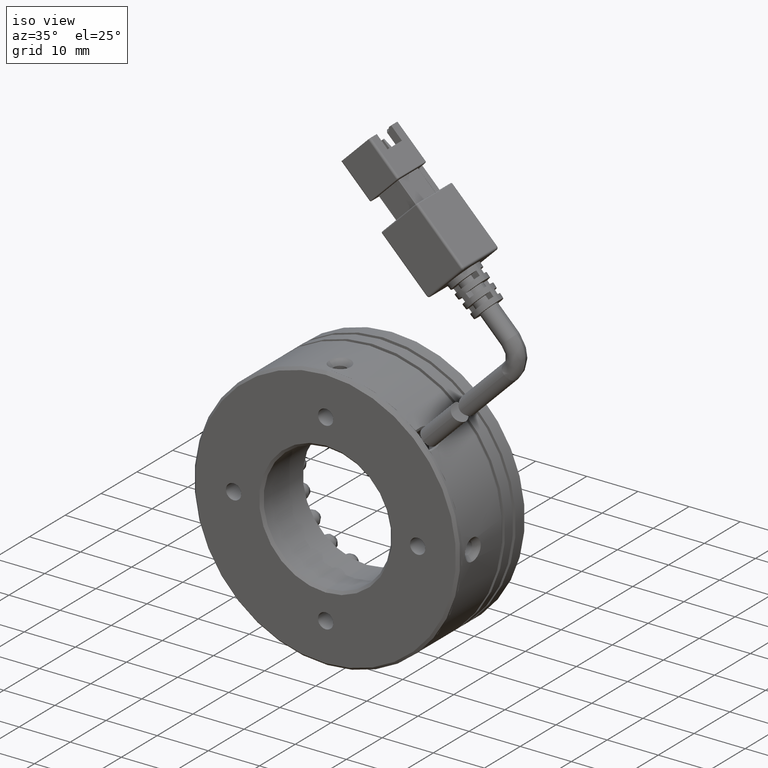
[diagram: clean part render]
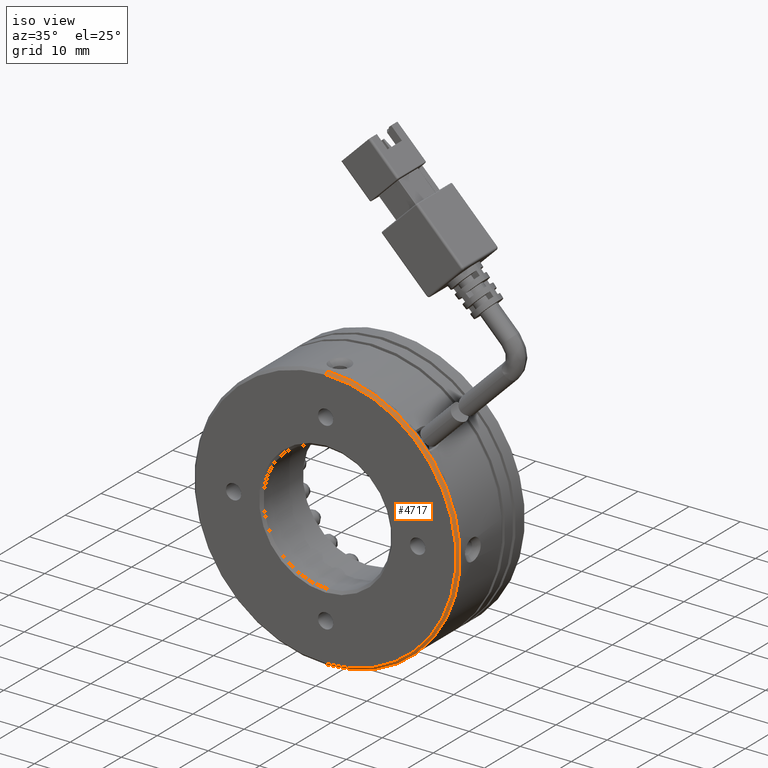
[diagram: same view with one face highlighted and labeled with its STEP entity id]
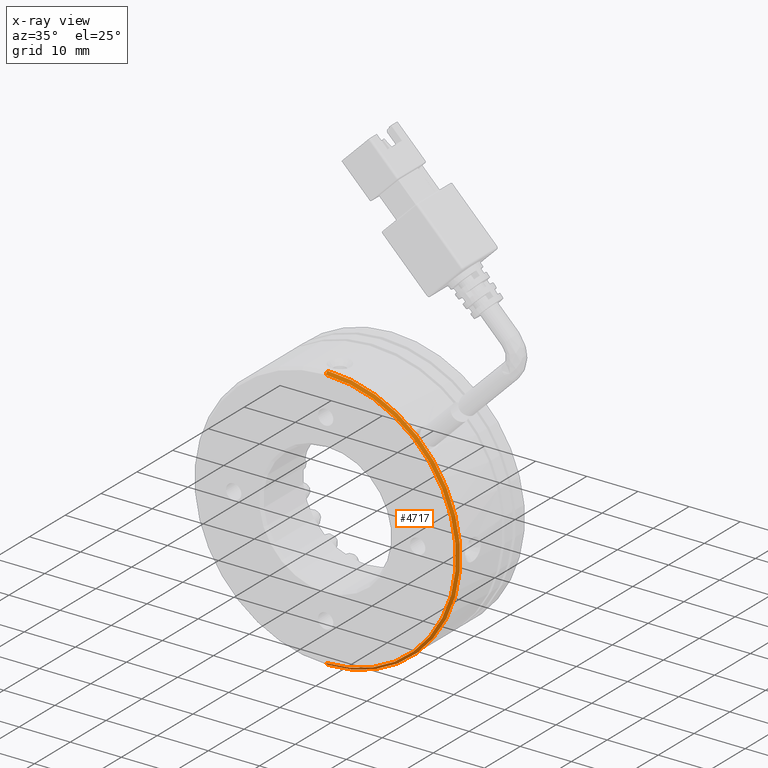
[diagram: x-ray of the same camera — body ghosted, the highlighted face saturated]
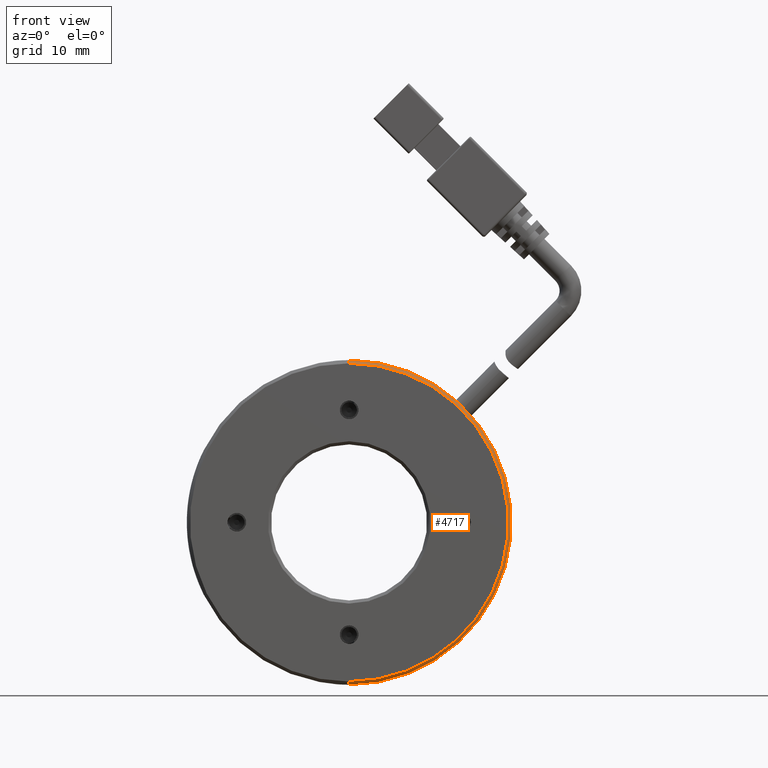
[diagram: same view with one face highlighted and labeled with its STEP entity id]
A machine part, iso view. The second image highlights one B-rep face of the part: STEP entity #4717.
The next image is the same camera in x-ray: the body ghosted, the highlighted face saturated — about 0% of this face is hidden behind the body in this view.
A second angle (front view) of the same face is appended — the face is thin or edge-on in the first view.
In plain terms, the highlighted conical surface has half-angle 45 deg.
Its self-contained STEP definition (entity closure, byte-faithful):
#4717 = ADVANCED_FACE ( 'NONE', ( #33785 ), #6837, .T. ) ;
#6503 = CARTESIAN_POINT ( 'NONE',  ( -0.8432364767453765000, -5.519923829761832000, 26.00000000000001100 ) ) ;
#6559 = CIRCLE ( 'NONE', #10870, 25.50000000000002500 ) ;
#6837 = CONICAL_SURFACE ( 'NONE', #28710, 26.00000000000001100, 0.7853981633974309600 ) ;
#8580 = EDGE_LOOP ( 'NONE', ( #40826, #18925, #45812, #11346 ) ) ;
#8923 = CIRCLE ( 'NONE', #9503, 26.00000000000000700 ) ;
#9503 = AXIS2_PLACEMENT_3D ( 'NONE', #15173, #40234, #18748 ) ;
#10870 = AXIS2_PLACEMENT_3D ( 'NONE', #19493, #44583, #23112 ) ;
#11346 = ORIENTED_EDGE ( 'NONE', *, *, #17796, .F. ) ;
#11781 = CARTESIAN_POINT ( 'NONE',  ( -0.8432364767453765000, -5.519923829761832000, -26.00000000000001100 ) ) ;
#11994 = DIRECTION ( 'NONE',  ( 8.659560562354782500E-017, 0.7071067811865597900, -0.7071067811865352500 ) ) ;
#14903 = VERTEX_POINT ( 'NONE', #11781 ) ;
#15142 = VECTOR ( 'NONE', #11994, 1000.000000000000000 ) ;
#15173 = CARTESIAN_POINT ( 'NONE',  ( -0.8432364767453765000, -5.519923829761832000, 0.0000000000000000000 ) ) ;
#15496 = DIRECTION ( 'NONE',  ( -0.0000000000000000000, 1.000000000000000000, 0.0000000000000000000 ) ) ;
#16348 = CARTESIAN_POINT ( 'NONE',  ( -0.8432364767453765000, -6.019923829761832000, 25.50000000000002500 ) ) ;
#17796 = EDGE_CURVE ( 'NONE', #19786, #24976, #23324, .T. ) ;
#18748 = DIRECTION ( 'NONE',  ( 0.0000000000000000000, 0.0000000000000000000, 1.000000000000000000 ) ) ;
#18925 = ORIENTED_EDGE ( 'NONE', *, *, #44516, .T. ) ;
#19493 = CARTESIAN_POINT ( 'NONE',  ( -0.8432364767453765000, -6.019923829761832000, 0.0000000000000000000 ) ) ;
#19786 = VERTEX_POINT ( 'NONE', #16348 ) ;
#22003 = VERTEX_POINT ( 'NONE', #40928 ) ;
#23112 = DIRECTION ( 'NONE',  ( 0.0000000000000000000, 0.0000000000000000000, 1.000000000000000000 ) ) ;
#23324 = LINE ( 'NONE', #6503, #31723 ) ;
#24677 = LINE ( 'NONE', #40567, #15142 ) ;
#24976 = VERTEX_POINT ( 'NONE', #44829 ) ;
#25326 = EDGE_CURVE ( 'NONE', #14903, #24976, #8923, .T. ) ;
#28710 = AXIS2_PLACEMENT_3D ( 'NONE', #33334, #15496, #29857 ) ;
#29857 = DIRECTION ( 'NONE',  ( 0.0000000000000000000, 0.0000000000000000000, 1.000000000000000000 ) ) ;
#31723 = VECTOR ( 'NONE', #38825, 1000.000000000000000 ) ;
#33334 = CARTESIAN_POINT ( 'NONE',  ( -0.8432364767453765000, -5.519923829761832000, 0.0000000000000000000 ) ) ;
#33785 = FACE_OUTER_BOUND ( 'NONE', #8580, .T. ) ;
#38825 = DIRECTION ( 'NONE',  ( 0.0000000000000000000, 0.7071067811865597900, 0.7071067811865352500 ) ) ;
#40234 = DIRECTION ( 'NONE',  ( -0.0000000000000000000, -1.000000000000000000, -0.0000000000000000000 ) ) ;
#40567 = CARTESIAN_POINT ( 'NONE',  ( -0.8432364767453733900, -5.519923829761832000, -26.00000000000001100 ) ) ;
#40826 = ORIENTED_EDGE ( 'NONE', *, *, #41493, .T. ) ;
#40928 = CARTESIAN_POINT ( 'NONE',  ( -0.8432364767453733900, -6.019923829761832000, -25.50000000000002500 ) ) ;
#41493 = EDGE_CURVE ( 'NONE', #19786, #22003, #6559, .T. ) ;
#44516 = EDGE_CURVE ( 'NONE', #22003, #14903, #24677, .T. ) ;
#44583 = DIRECTION ( 'NONE',  ( -0.0000000000000000000, 1.000000000000000000, 0.0000000000000000000 ) ) ;
#44829 = CARTESIAN_POINT ( 'NONE',  ( -0.8432364767453733900, -5.519923829761832000, 26.00000000000001100 ) ) ;
#45812 = ORIENTED_EDGE ( 'NONE', *, *, #25326, .T. ) ;